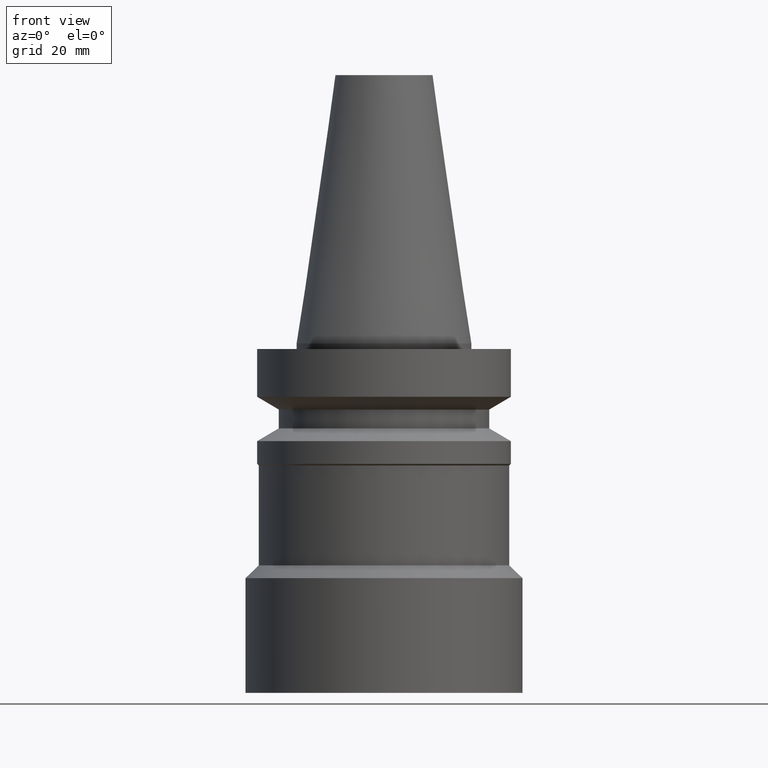
[diagram: clean part render]
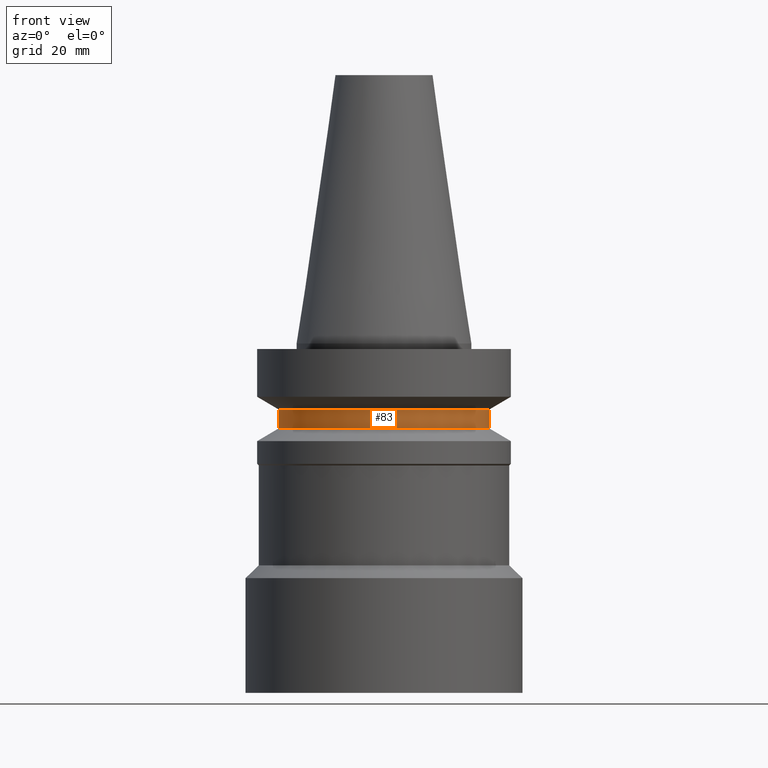
[diagram: same view with one face highlighted and labeled with its STEP entity id]
A machine part, front view. The second image highlights one B-rep face of the part: STEP entity #83.
In plain terms, the highlighted cylindrical surface (bore or boss wall) has radius 19 mm, axis along (-0, -0, 1).
Its self-contained STEP definition (entity closure, byte-faithful):
#83=ADVANCED_FACE('',(#113,#114),#115,.T.);
#113=FACE_BOUND('',#153,.T.);
#114=FACE_BOUND('',#154,.T.);
#115=CYLINDRICAL_SURFACE('',#155,19.0);
#153=EDGE_LOOP('',(#209));
#154=EDGE_LOOP('',(#210));
#155=AXIS2_PLACEMENT_3D('',#211,#212,#213);
#209=ORIENTED_EDGE('',*,*,#247,.F.);
#210=ORIENTED_EDGE('',*,*,#246,.T.);
#211=CARTESIAN_POINT('',(8.32759823420199E-016,1.6655196468404E-015,-13.6));
#212=DIRECTION('',(-6.12323399573677E-017,-1.22464679914735E-016,1.0));
#213=DIRECTION('',(-1.23259516440783E-032,1.0,1.22464679914735E-016));
#246=EDGE_CURVE('',#267,#267,#268,.T.);
#247=EDGE_CURVE('',#269,#269,#270,.T.);
#267=VERTEX_POINT('',#293);
#268=CIRCLE('',#294,19.0);
#269=VERTEX_POINT('',#295);
#270=CIRCLE('',#296,19.0);
#293=CARTESIAN_POINT('',(7.29240495420715E-016,19.0,-11.9094010767585));
#294=AXIS2_PLACEMENT_3D('',#327,#328,#329);
#295=CARTESIAN_POINT('',(9.36279151419683E-016,19.0,-15.2905989232415));
#296=AXIS2_PLACEMENT_3D('',#330,#331,#332);
#327=CARTESIAN_POINT('',(7.29240495420715E-016,1.45848099084143E-015,-11.9094010767585));
#328=DIRECTION('',(6.12323399573677E-017,1.22464679914735E-016,-1.0));
#329=DIRECTION('',(-1.23259516440783E-032,1.0,1.22464679914735E-016));
#330=CARTESIAN_POINT('',(9.36279151419684E-016,1.87255830283937E-015,-15.2905989232415));
#331=DIRECTION('',(6.12323399573677E-017,1.22464679914735E-016,-1.0));
#332=DIRECTION('',(-1.23259516440783E-032,1.0,1.22464679914735E-016));